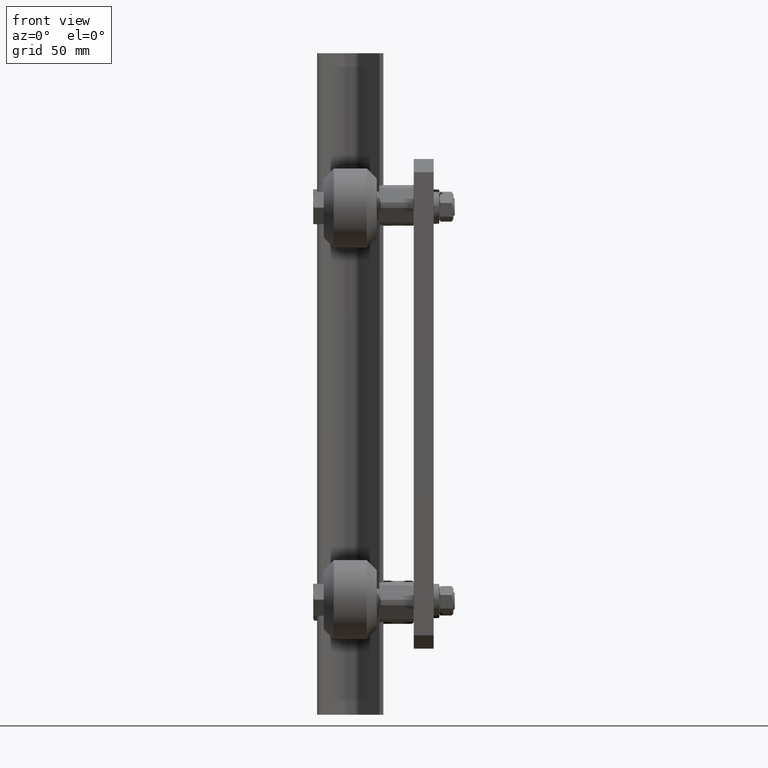
[diagram: clean part render]
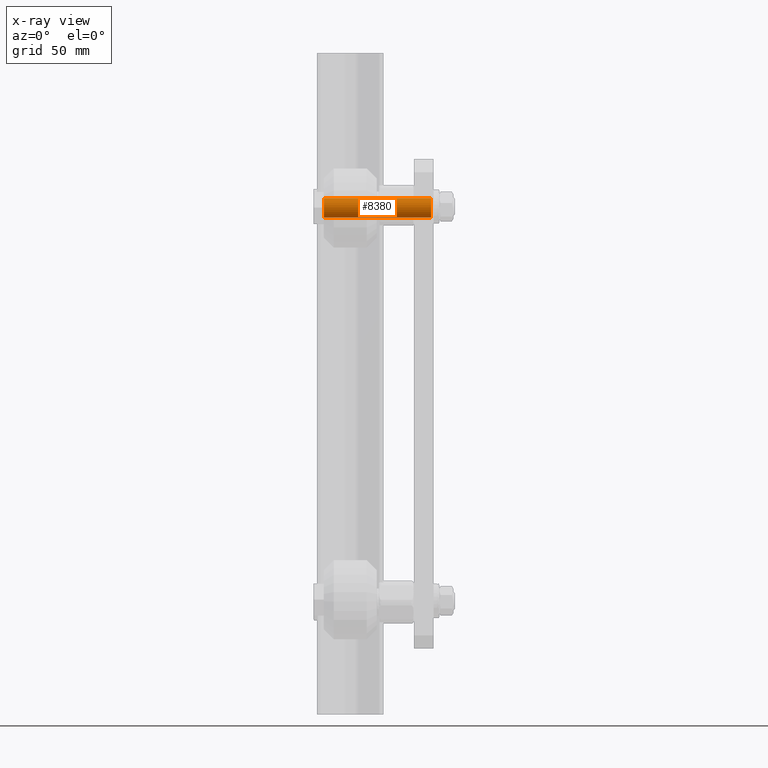
[diagram: x-ray — body ghosted, one internal face saturated and labeled with its STEP entity id]
A machine part, front view, then the same camera in x-ray: the body is ghosted and one INTERNAL B-rep face — a face not visible from any outside direction — is saturated and labeled: STEP entity #8380.
In plain terms, the highlighted cylindrical surface (bore or boss wall) has radius 7.5 mm, axis along (1, -0, -0).
Its self-contained STEP definition (entity closure, byte-faithful):
#510=CYLINDRICAL_SURFACE('',#9320,7.5);
#796=FACE_OUTER_BOUND('',#1272,.T.);
#1272=EDGE_LOOP('',(#6479,#6480,#6481,#6482));
#1738=CIRCLE('',#9319,7.5);
#1739=CIRCLE('',#9321,7.5);
#2306=LINE('',#13986,#2929);
#2929=VECTOR('',#11004,7.5);
#3592=VERTEX_POINT('',#13982);
#3593=VERTEX_POINT('',#13985);
#4639=EDGE_CURVE('',#3592,#3592,#1738,.T.);
#4640=EDGE_CURVE('',#3592,#3593,#2306,.T.);
#4641=EDGE_CURVE('',#3593,#3593,#1739,.T.);
#6479=ORIENTED_EDGE('',*,*,#4639,.T.);
#6480=ORIENTED_EDGE('',*,*,#4640,.T.);
#6481=ORIENTED_EDGE('',*,*,#4641,.F.);
#6482=ORIENTED_EDGE('',*,*,#4640,.F.);
#8380=ADVANCED_FACE('',(#796),#510,.T.);
#9319=AXIS2_PLACEMENT_3D('',#13983,#11000,#11001);
#9320=AXIS2_PLACEMENT_3D('',#13984,#11002,#11003);
#9321=AXIS2_PLACEMENT_3D('',#13987,#11005,#11006);
#11000=DIRECTION('center_axis',(0.,0.,1.));
#11001=DIRECTION('ref_axis',(1.,0.,0.));
#11002=DIRECTION('center_axis',(0.,0.,-1.));
#11003=DIRECTION('ref_axis',(1.,0.,0.));
#11004=DIRECTION('',(0.,0.,1.));
#11005=DIRECTION('center_axis',(0.,0.,1.));
#11006=DIRECTION('ref_axis',(1.,0.,0.));
#13982=CARTESIAN_POINT('',(-7.5,9.18485099360515E-16,-81.));
#13983=CARTESIAN_POINT('Origin',(0.,0.,-81.));
#13984=CARTESIAN_POINT('Origin',(0.,0.,0.));
#13985=CARTESIAN_POINT('',(-7.5,9.18485099360515E-16,0.));
#13986=CARTESIAN_POINT('',(-7.5,9.18485099360515E-16,0.));
#13987=CARTESIAN_POINT('Origin',(0.,0.,0.));